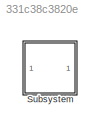
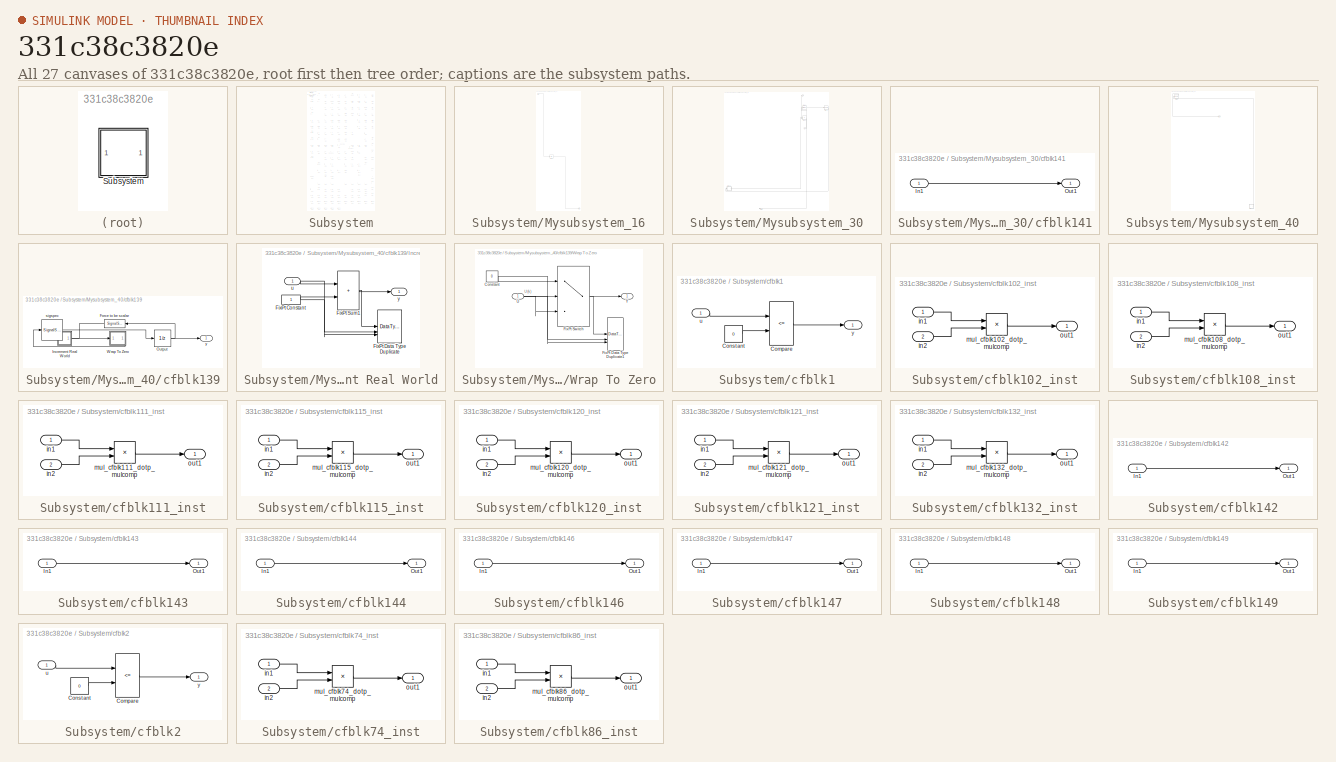
[diagram: thumbnail index - all 27 canvases of the model, root first then tree order]
MODEL slx_331c38c3820e
KIND model
CONFIG AbsTol = auto
CONFIG EnableMultiTasking = off
CONFIG FixedStep = auto
CONFIG MaxStep = auto
CONFIG MinStep = auto
CONFIG RelTol = 1e-3
CONFIG SampleTimeConstraint = Unconstrained
CONFIG SolverName = VariableStepAuto
CONFIG StartTime = 0.0
CONFIG StopTime = 10.0
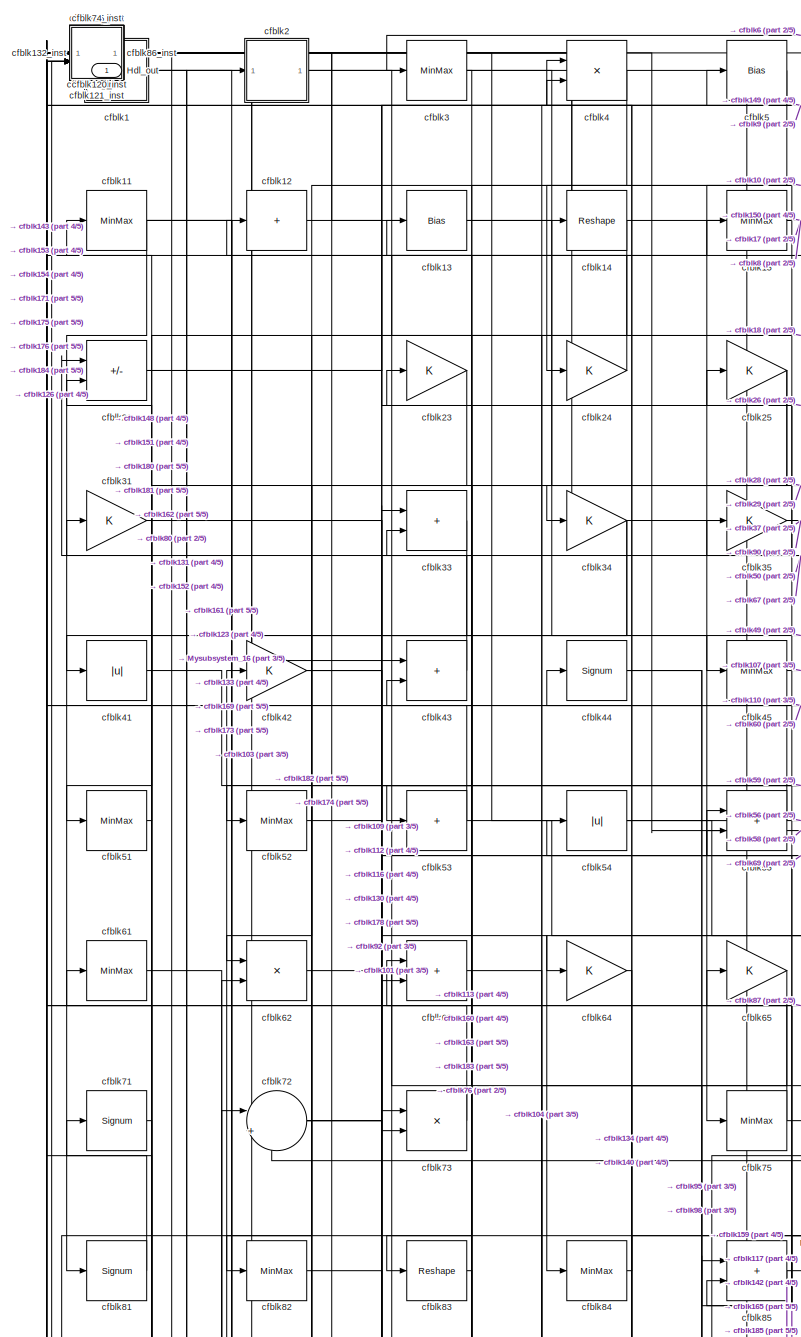
[diagram: Subsystem - part 1/5, top left region]
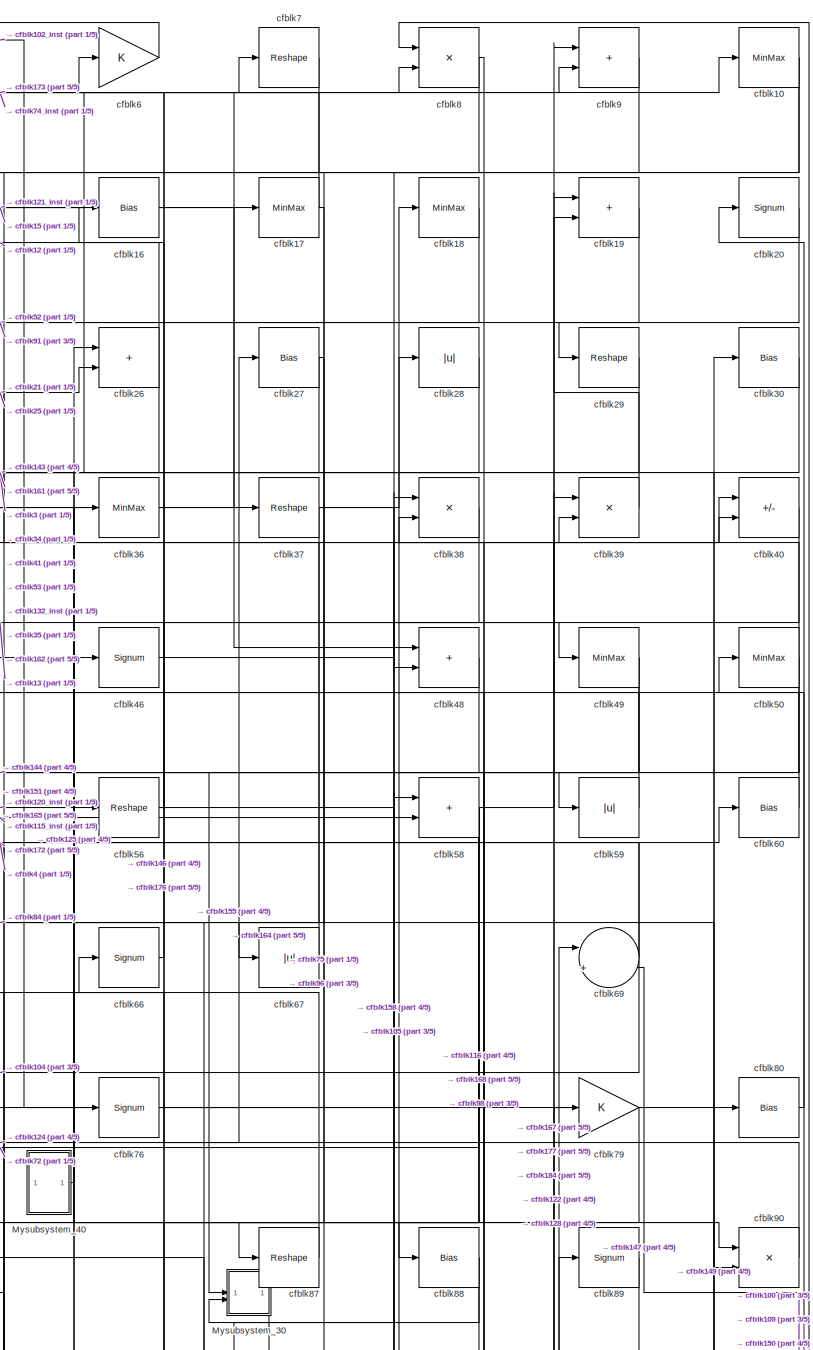
[diagram: Subsystem - part 2/5, top right region]
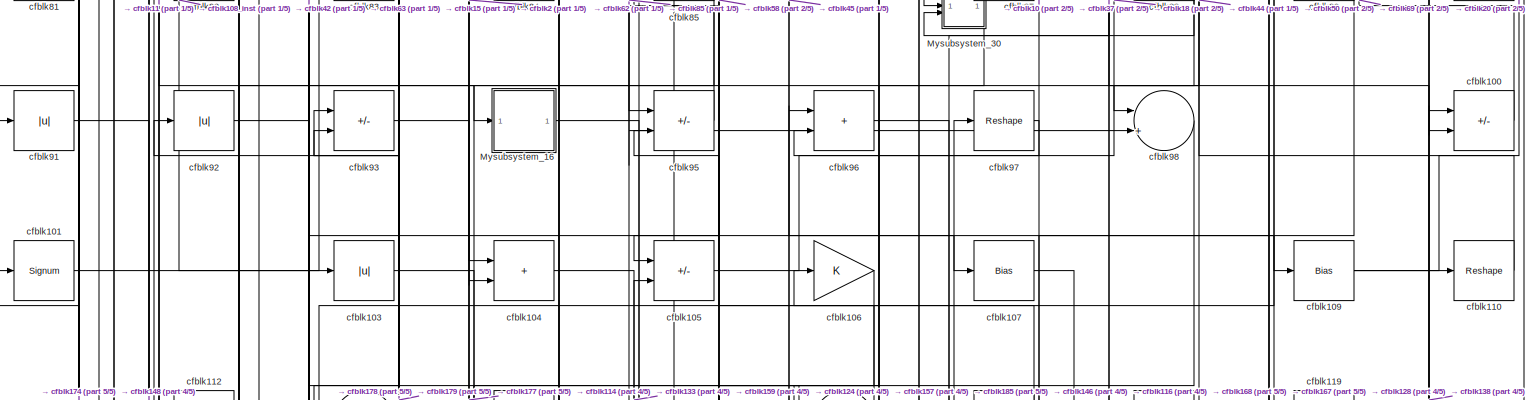
[diagram: Subsystem - part 3/5, full width, middle band]
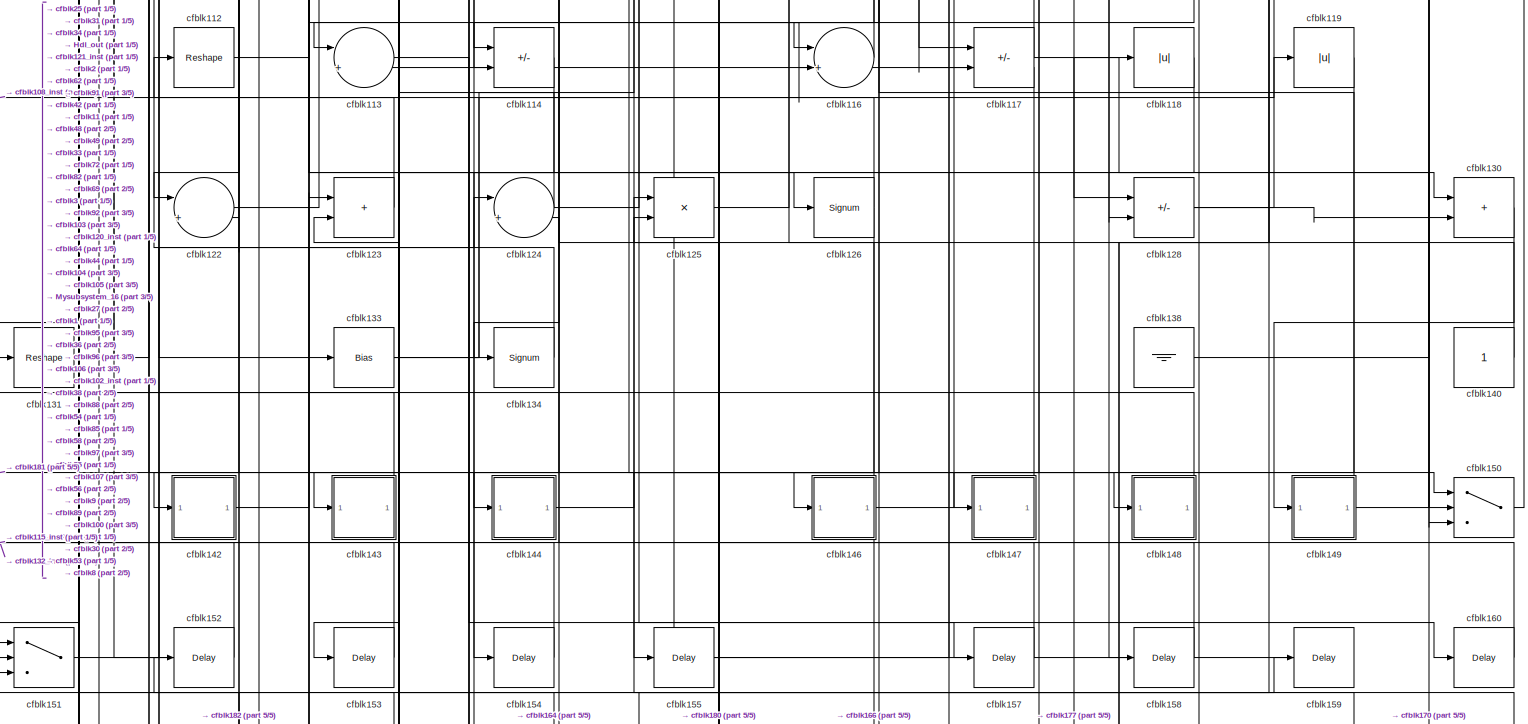
[diagram: Subsystem - part 4/5, full width, bottom band]
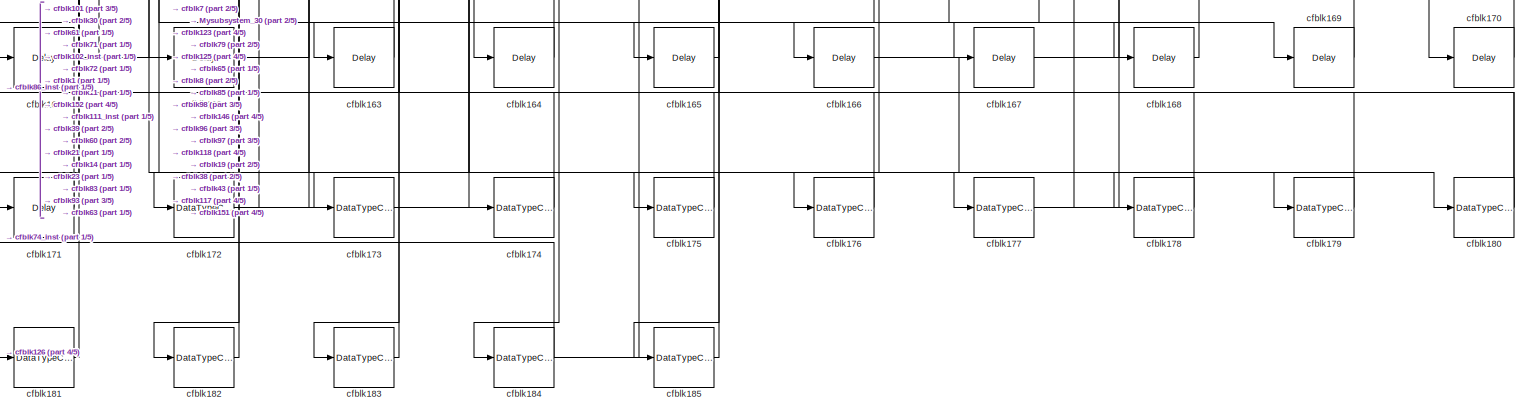
[diagram: Subsystem - part 5/5, full width, bottom band]
BLOCK [SubSystem] Subsystem
BLOCK [Outport] Subsystem/Hdl_out
  OutDataTypeStr = uint8
  SampleTime = 1
BLOCK [SubSystem] Subsystem/Mysubsystem_16
BLOCK [Inport] Subsystem/Mysubsystem_16/In1
  OutDataTypeStr = uint8
  PortDimensions = 1
  SampleTime = 1
BLOCK [Outport] Subsystem/Mysubsystem_16/Out1
  SampleTime = 1
BLOCK [Bias] Subsystem/Mysubsystem_16/cfblk94
  Bias = 0.0
  SaturateOnIntegerOverflow = off
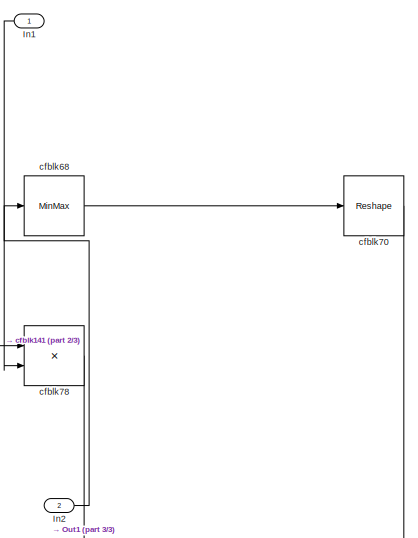
[diagram: Subsystem/Mysubsystem_30 - part 1/3, top right region]
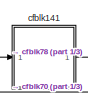
[diagram: Subsystem/Mysubsystem_30 - part 2/3, bottom left region]
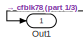
[diagram: Subsystem/Mysubsystem_30 - part 3/3, bottom center region]
BLOCK [SubSystem] Subsystem/Mysubsystem_30
BLOCK [Inport] Subsystem/Mysubsystem_30/In1
  OutDataTypeStr = uint8
  PortDimensions = 1
  SampleTime = 1
BLOCK [Inport] Subsystem/Mysubsystem_30/In2
  OutDataTypeStr = uint8
  Port = 2
  PortDimensions = 1
  SampleTime = 1
BLOCK [Outport] Subsystem/Mysubsystem_30/Out1
  SampleTime = 1
BLOCK [SubSystem] Subsystem/Mysubsystem_30/cfblk141
BLOCK [Inport] Subsystem/Mysubsystem_30/cfblk141/In1
  OutDataTypeStr = uint8
  PortDimensions = 1
  SampleTime = 1
BLOCK [Outport] Subsystem/Mysubsystem_30/cfblk141/Out1
  SampleTime = 1
BLOCK [MinMax] Subsystem/Mysubsystem_30/cfblk68
BLOCK [Reshape] Subsystem/Mysubsystem_30/cfblk70
BLOCK [Product] Subsystem/Mysubsystem_30/cfblk78
  Inputs = */
  RndMeth = Zero
  SaturateOnIntegerOverflow = on
BLOCK [SubSystem] Subsystem/Mysubsystem_40
BLOCK [Outport] Subsystem/Mysubsystem_40/Out1
  SampleTime = 1
BLOCK [SubSystem] Subsystem/Mysubsystem_40/cfblk139
BLOCK [SignalSpecification] Subsystem/Mysubsystem_40/cfblk139/Force to be scalar
  Dimensions = 1
  DisableCoverage = on
BLOCK [SubSystem] Subsystem/Mysubsystem_40/cfblk139/Increment Real World
BLOCK [Constant] Subsystem/Mysubsystem_40/cfblk139/Increment Real World/FixPt Constant
  DisableCoverage = on
  OutDataTypeStr = Inherit: Inherit via back propagation
  SampleTime = -1
BLOCK [DataTypeDuplicate] Subsystem/Mysubsystem_40/cfblk139/Increment Real World/FixPt Data Type Duplicate
  DisableCoverage = on
  NumInputPorts = 3
BLOCK [Sum] Subsystem/Mysubsystem_40/cfblk139/Increment Real World/FixPt Sum1
  IconShape = rectangular
  InputSameDT = on
  LockScale = on
  OutDataTypeStr = Inherit: Inherit via back propagation
BLOCK [Inport] Subsystem/Mysubsystem_40/cfblk139/Increment Real World/u
  OutDataTypeStr = uint8
  SampleTime = 1
BLOCK [Outport] Subsystem/Mysubsystem_40/cfblk139/Increment Real World/y
  SampleTime = 1
BLOCK [UnitDelay] Subsystem/Mysubsystem_40/cfblk139/Output
  HasFrameUpgradeWarning = on
  InitialCondition = 0.0
  SampleTime = tsamp
BLOCK [SubSystem] Subsystem/Mysubsystem_40/cfblk139/Wrap To Zero
BLOCK [Constant] Subsystem/Mysubsystem_40/cfblk139/Wrap To Zero/Constant
  DisableCoverage = on
  OutDataTypeStr = Inherit: Inherit via back propagation
  SampleTime = -1
  Value = 0
BLOCK [DataTypeDuplicate] Subsystem/Mysubsystem_40/cfblk139/Wrap To Zero/FixPt Data Type Duplicate1
  DisableCoverage = on
  NumInputPorts = 3
BLOCK [Switch] Subsystem/Mysubsystem_40/cfblk139/Wrap To Zero/FixPt Switch
  Criteria = u2 > Threshold
  InputSameDT = off
  OutDataTypeStr = Inherit: Inherit via back propagation
  SaturateOnIntegerOverflow = off
  Threshold = Threshold
  ZeroCross = off
BLOCK [Inport] Subsystem/Mysubsystem_40/cfblk139/Wrap To Zero/U
  OutDataTypeStr = uint8
  SampleTime = 1
BLOCK [Outport] Subsystem/Mysubsystem_40/cfblk139/Wrap To Zero/Y
  SampleTime = 1
BLOCK [SignalSpecification] Subsystem/Mysubsystem_40/cfblk139/sigspec
  Dimensions = 1
  OutDataTypeStr = uint8
BLOCK [Outport] Subsystem/Mysubsystem_40/cfblk139/y
  SampleTime = 1
BLOCK [Signum] Subsystem/Mysubsystem_40/cfblk22
BLOCK [SubSystem] Subsystem/cfblk1
BLOCK [RelationalOperator] Subsystem/cfblk1/Compare
  Operator = <=
  OutDataTypeStr = fixdt(0, 8)
BLOCK [Constant] Subsystem/cfblk1/Constant
  DisableCoverage = on
  OutDataTypeStr = Inherit: Inherit via back propagation
  PreserveConstantTs = on
  SampleTime = -1
  Value = 0
BLOCK [Inport] Subsystem/cfblk1/u
  OutDataTypeStr = uint8
  SampleTime = 1
BLOCK [Outport] Subsystem/cfblk1/y
  SampleTime = 1
BLOCK [MinMax] Subsystem/cfblk10
  OutDataTypeStr = uint8
BLOCK [Sum] Subsystem/cfblk100
  IconShape = rectangular
  Inputs = +-
  OutDataTypeStr = uint8
BLOCK [Signum] Subsystem/cfblk101
BLOCK [SubSystem] Subsystem/cfblk102_inst
BLOCK [Inport] Subsystem/cfblk102_inst/in1
  OutDataTypeStr = uint8
  SampleTime = 1
BLOCK [Inport] Subsystem/cfblk102_inst/in2
  OutDataTypeStr = uint8
  Port = 2
  SampleTime = 1
BLOCK [Product] Subsystem/cfblk102_inst/mul_cfblk102_dotp_mulcomp
  Inputs = **
  OutDataTypeStr = uint8
  SampleTime = 1
BLOCK [Outport] Subsystem/cfblk102_inst/out1
  OutDataTypeStr = uint8
  SampleTime = 1
BLOCK [Abs] Subsystem/cfblk103
  OutDataTypeStr = uint8
  SaturateOnIntegerOverflow = off
BLOCK [Sum] Subsystem/cfblk104
  IconShape = rectangular
  OutDataTypeStr = uint8
BLOCK [Sum] Subsystem/cfblk105
  IconShape = rectangular
  Inputs = +-
  OutDataTypeStr = uint8
BLOCK [Gain] Subsystem/cfblk106
  OutDataTypeStr = uint8
BLOCK [Bias] Subsystem/cfblk107
  Bias = 0.0
  SaturateOnIntegerOverflow = off
BLOCK [SubSystem] Subsystem/cfblk108_inst
BLOCK [Inport] Subsystem/cfblk108_inst/in1
  OutDataTypeStr = uint8
  SampleTime = 1
BLOCK [Inport] Subsystem/cfblk108_inst/in2
  OutDataTypeStr = uint8
  Port = 2
  SampleTime = 1
BLOCK [Product] Subsystem/cfblk108_inst/mul_cfblk108_dotp_mulcomp
  Inputs = **
  OutDataTypeStr = uint8
  SampleTime = 1
BLOCK [Outport] Subsystem/cfblk108_inst/out1
  OutDataTypeStr = uint8
  SampleTime = 1
BLOCK [Bias] Subsystem/cfblk109
  Bias = 0.0
  SaturateOnIntegerOverflow = off
BLOCK [MinMax] Subsystem/cfblk11
  OutDataTypeStr = uint8
BLOCK [Reshape] Subsystem/cfblk110
BLOCK [SubSystem] Subsystem/cfblk111_inst
BLOCK [Inport] Subsystem/cfblk111_inst/in1
  OutDataTypeStr = uint8
  SampleTime = 1
BLOCK [Inport] Subsystem/cfblk111_inst/in2
  OutDataTypeStr = uint8
  Port = 2
  SampleTime = 1
BLOCK [Product] Subsystem/cfblk111_inst/mul_cfblk111_dotp_mulcomp
  Inputs = **
  OutDataTypeStr = uint8
  SampleTime = 1
BLOCK [Outport] Subsystem/cfblk111_inst/out1
  OutDataTypeStr = uint8
  SampleTime = 1
BLOCK [Reshape] Subsystem/cfblk112
BLOCK [Sum] Subsystem/cfblk113
  Inputs = |++
  OutDataTypeStr = uint8
BLOCK [Sum] Subsystem/cfblk114
  IconShape = rectangular
  Inputs = +-
  OutDataTypeStr = uint8
BLOCK [SubSystem] Subsystem/cfblk115_inst
BLOCK [Inport] Subsystem/cfblk115_inst/in1
  OutDataTypeStr = uint8
  SampleTime = 1
BLOCK [Inport] Subsystem/cfblk115_inst/in2
  OutDataTypeStr = uint8
  Port = 2
  SampleTime = 1
BLOCK [Product] Subsystem/cfblk115_inst/mul_cfblk115_dotp_mulcomp
  Inputs = **
  OutDataTypeStr = uint8
  SampleTime = 1
BLOCK [Outport] Subsystem/cfblk115_inst/out1
  OutDataTypeStr = uint8
  SampleTime = 1
BLOCK [Sum] Subsystem/cfblk116
  Inputs = |++
  OutDataTypeStr = uint8
BLOCK [Sum] Subsystem/cfblk117
  IconShape = rectangular
  Inputs = +-
  OutDataTypeStr = uint8
BLOCK [Abs] Subsystem/cfblk118
  OutDataTypeStr = uint8
  SaturateOnIntegerOverflow = off
BLOCK [Abs] Subsystem/cfblk119
  OutDataTypeStr = uint8
  SaturateOnIntegerOverflow = off
BLOCK [Sum] Subsystem/cfblk12
  IconShape = rectangular
  Inputs = +
  OutDataTypeStr = uint8
BLOCK [SubSystem] Subsystem/cfblk120_inst
BLOCK [Inport] Subsystem/cfblk120_inst/in1
  OutDataTypeStr = uint8
  SampleTime = 1
BLOCK [Inport] Subsystem/cfblk120_inst/in2
  OutDataTypeStr = uint8
  Port = 2
  SampleTime = 1
BLOCK [Product] Subsystem/cfblk120_inst/mul_cfblk120_dotp_mulcomp
  Inputs = **
  OutDataTypeStr = uint8
  SampleTime = 1
BLOCK [Outport] Subsystem/cfblk120_inst/out1
  OutDataTypeStr = uint8
  SampleTime = 1
BLOCK [SubSystem] Subsystem/cfblk121_inst
BLOCK [Inport] Subsystem/cfblk121_inst/in1
  OutDataTypeStr = uint8
  SampleTime = 1
BLOCK [Inport] Subsystem/cfblk121_inst/in2
  OutDataTypeStr = uint8
  Port = 2
  SampleTime = 1
BLOCK [Product] Subsystem/cfblk121_inst/mul_cfblk121_dotp_mulcomp
  Inputs = **
  OutDataTypeStr = uint8
  SampleTime = 1
BLOCK [Outport] Subsystem/cfblk121_inst/out1
  OutDataTypeStr = uint8
  SampleTime = 1
BLOCK [Sum] Subsystem/cfblk122
  Inputs = |++
  OutDataTypeStr = uint8
BLOCK [Sum] Subsystem/cfblk123
  IconShape = rectangular
  OutDataTypeStr = uint8
BLOCK [Sum] Subsystem/cfblk124
  Inputs = |++
  OutDataTypeStr = uint8
BLOCK [Product] Subsystem/cfblk125
  Inputs = */
  OutDataTypeStr = uint8
  RndMeth = Zero
  SaturateOnIntegerOverflow = on
BLOCK [Signum] Subsystem/cfblk126
BLOCK [Sum] Subsystem/cfblk128
  IconShape = rectangular
  Inputs = +-
  OutDataTypeStr = uint8
BLOCK [Bias] Subsystem/cfblk13
  Bias = 0.0
  SaturateOnIntegerOverflow = off
BLOCK [Sum] Subsystem/cfblk130
  IconShape = rectangular
  OutDataTypeStr = uint8
BLOCK [Reshape] Subsystem/cfblk131
BLOCK [SubSystem] Subsystem/cfblk132_inst
BLOCK [Inport] Subsystem/cfblk132_inst/in1
  OutDataTypeStr = uint8
  SampleTime = 1
BLOCK [Inport] Subsystem/cfblk132_inst/in2
  OutDataTypeStr = uint8
  Port = 2
  SampleTime = 1
BLOCK [Product] Subsystem/cfblk132_inst/mul_cfblk132_dotp_mulcomp
  Inputs = **
  OutDataTypeStr = uint8
  SampleTime = 1
BLOCK [Outport] Subsystem/cfblk132_inst/out1
  OutDataTypeStr = uint8
  SampleTime = 1
BLOCK [Bias] Subsystem/cfblk133
  Bias = 0.0
  SaturateOnIntegerOverflow = off
BLOCK [Signum] Subsystem/cfblk134
BLOCK [Ground] Subsystem/cfblk138
BLOCK [Reshape] Subsystem/cfblk14
BLOCK [Constant] Subsystem/cfblk140
  OutDataTypeStr = uint8
  SampleTime = -1
BLOCK [SubSystem] Subsystem/cfblk142
BLOCK [Inport] Subsystem/cfblk142/In1
  OutDataTypeStr = uint8
  PortDimensions = 1
  SampleTime = 1
BLOCK [Outport] Subsystem/cfblk142/Out1
  SampleTime = 1
BLOCK [SubSystem] Subsystem/cfblk143
BLOCK [Inport] Subsystem/cfblk143/In1
  OutDataTypeStr = uint8
  PortDimensions = 1
  SampleTime = 1
BLOCK [Outport] Subsystem/cfblk143/Out1
  SampleTime = 1
BLOCK [SubSystem] Subsystem/cfblk144
BLOCK [Inport] Subsystem/cfblk144/In1
  OutDataTypeStr = uint8
  PortDimensions = 1
  SampleTime = 1
BLOCK [Outport] Subsystem/cfblk144/Out1
  SampleTime = 1
BLOCK [SubSystem] Subsystem/cfblk146
BLOCK [Inport] Subsystem/cfblk146/In1
  OutDataTypeStr = uint8
  PortDimensions = 1
  SampleTime = 1
BLOCK [Outport] Subsystem/cfblk146/Out1
  SampleTime = 1
BLOCK [SubSystem] Subsystem/cfblk147
BLOCK [Inport] Subsystem/cfblk147/In1
  OutDataTypeStr = uint8
  PortDimensions = 1
  SampleTime = 1
BLOCK [Outport] Subsystem/cfblk147/Out1
  SampleTime = 1
BLOCK [SubSystem] Subsystem/cfblk148
BLOCK [Inport] Subsystem/cfblk148/In1
  OutDataTypeStr = uint8
  PortDimensions = 1
  SampleTime = 1
BLOCK [Outport] Subsystem/cfblk148/Out1
  SampleTime = 1
BLOCK [SubSystem] Subsystem/cfblk149
BLOCK [Inport] Subsystem/cfblk149/In1
  OutDataTypeStr = uint8
  PortDimensions = 1
  SampleTime = 1
BLOCK [Outport] Subsystem/cfblk149/Out1
  SampleTime = 1
BLOCK [MinMax] Subsystem/cfblk15
  OutDataTypeStr = uint8
BLOCK [Switch] Subsystem/cfblk150
  InputSameDT = off
  OutDataTypeStr = uint8
  SaturateOnIntegerOverflow = off
BLOCK [Switch] Subsystem/cfblk151
  InputSameDT = off
  OutDataTypeStr = uint8
  SaturateOnIntegerOverflow = off
BLOCK [Delay] Subsystem/cfblk152
  InputPortMap = u0
  SampleTime = 1
BLOCK [Delay] Subsystem/cfblk153
  InputPortMap = u0
  SampleTime = 1
BLOCK [Delay] Subsystem/cfblk154
  InputPortMap = u0
  SampleTime = 1
BLOCK [Delay] Subsystem/cfblk155
  InputPortMap = u0
  SampleTime = 1
BLOCK [Delay] Subsystem/cfblk157
  InputPortMap = u0
  SampleTime = 1
BLOCK [Delay] Subsystem/cfblk158
  InputPortMap = u0
  SampleTime = 1
BLOCK [Delay] Subsystem/cfblk159
  InputPortMap = u0
  SampleTime = 1
BLOCK [Bias] Subsystem/cfblk16
  Bias = 0.0
  SaturateOnIntegerOverflow = off
BLOCK [Delay] Subsystem/cfblk160
  InputPortMap = u0
  SampleTime = 1
BLOCK [Delay] Subsystem/cfblk161
  InputPortMap = u0
  SampleTime = 1
BLOCK [Delay] Subsystem/cfblk162
  InputPortMap = u0
  SampleTime = 1
BLOCK [Delay] Subsystem/cfblk163
  InputPortMap = u0
  SampleTime = 1
BLOCK [Delay] Subsystem/cfblk164
  InputPortMap = u0
  SampleTime = 1
BLOCK [Delay] Subsystem/cfblk165
  InputPortMap = u0
  SampleTime = 1
BLOCK [Delay] Subsystem/cfblk166
  InputPortMap = u0
  SampleTime = 1
BLOCK [Delay] Subsystem/cfblk167
  InputPortMap = u0
  SampleTime = 1
BLOCK [Delay] Subsystem/cfblk168
  InputPortMap = u0
  SampleTime = 1
BLOCK [Delay] Subsystem/cfblk169
  InputPortMap = u0
  SampleTime = 1
BLOCK [MinMax] Subsystem/cfblk17
  OutDataTypeStr = uint8
BLOCK [Delay] Subsystem/cfblk170
  InputPortMap = u0
  SampleTime = 1
BLOCK [Delay] Subsystem/cfblk171
  InputPortMap = u0
  SampleTime = 1
BLOCK [DataTypeConversion] Subsystem/cfblk172
  OutDataTypeStr = uint8
  RndMeth = Floor
  SaturateOnIntegerOverflow = off
BLOCK [DataTypeConversion] Subsystem/cfblk173
  OutDataTypeStr = uint8
  RndMeth = Floor
  SaturateOnIntegerOverflow = off
BLOCK [DataTypeConversion] Subsystem/cfblk174
  OutDataTypeStr = uint8
  RndMeth = Floor
  SaturateOnIntegerOverflow = off
BLOCK [DataTypeConversion] Subsystem/cfblk175
  OutDataTypeStr = uint8
  RndMeth = Floor
  SaturateOnIntegerOverflow = off
BLOCK [DataTypeConversion] Subsystem/cfblk176
  OutDataTypeStr = uint8
  RndMeth = Floor
  SaturateOnIntegerOverflow = off
BLOCK [DataTypeConversion] Subsystem/cfblk177
  OutDataTypeStr = uint8
  RndMeth = Floor
  SaturateOnIntegerOverflow = off
BLOCK [DataTypeConversion] Subsystem/cfblk178
  OutDataTypeStr = uint8
  RndMeth = Floor
  SaturateOnIntegerOverflow = off
BLOCK [DataTypeConversion] Subsystem/cfblk179
  OutDataTypeStr = uint8
  RndMeth = Floor
  SaturateOnIntegerOverflow = off
BLOCK [MinMax] Subsystem/cfblk18
  OutDataTypeStr = uint8
BLOCK [DataTypeConversion] Subsystem/cfblk180
  OutDataTypeStr = uint8
  RndMeth = Floor
  SaturateOnIntegerOverflow = off
BLOCK [DataTypeConversion] Subsystem/cfblk181
  OutDataTypeStr = uint8
  RndMeth = Floor
  SaturateOnIntegerOverflow = off
BLOCK [DataTypeConversion] Subsystem/cfblk182
  OutDataTypeStr = uint8
  RndMeth = Floor
  SaturateOnIntegerOverflow = off
BLOCK [DataTypeConversion] Subsystem/cfblk183
  OutDataTypeStr = uint8
  RndMeth = Floor
  SaturateOnIntegerOverflow = off
BLOCK [DataTypeConversion] Subsystem/cfblk184
  OutDataTypeStr = uint8
  RndMeth = Floor
  SaturateOnIntegerOverflow = off
BLOCK [DataTypeConversion] Subsystem/cfblk185
  OutDataTypeStr = uint8
  RndMeth = Floor
  SaturateOnIntegerOverflow = off
BLOCK [Sum] Subsystem/cfblk19
  IconShape = rectangular
  OutDataTypeStr = uint8
BLOCK [SubSystem] Subsystem/cfblk2
BLOCK [RelationalOperator] Subsystem/cfblk2/Compare
  Operator = <=
  OutDataTypeStr = fixdt(0, 8)
BLOCK [Constant] Subsystem/cfblk2/Constant
  DisableCoverage = on
  OutDataTypeStr = Inherit: Inherit via back propagation
  PreserveConstantTs = on
  SampleTime = -1
  Value = 0
BLOCK [Inport] Subsystem/cfblk2/u
  OutDataTypeStr = uint8
  SampleTime = 1
BLOCK [Outport] Subsystem/cfblk2/y
  SampleTime = 1
BLOCK [Signum] Subsystem/cfblk20
BLOCK [Sum] Subsystem/cfblk21
  IconShape = rectangular
  Inputs = +-
  OutDataTypeStr = uint8
BLOCK [Gain] Subsystem/cfblk23
  OutDataTypeStr = uint8
BLOCK [Gain] Subsystem/cfblk24
  OutDataTypeStr = uint8
BLOCK [Gain] Subsystem/cfblk25
  OutDataTypeStr = uint8
BLOCK [Sum] Subsystem/cfblk26
  IconShape = rectangular
  OutDataTypeStr = uint8
BLOCK [Bias] Subsystem/cfblk27
  Bias = 0.0
  SaturateOnIntegerOverflow = off
BLOCK [Abs] Subsystem/cfblk28
  OutDataTypeStr = uint8
  SaturateOnIntegerOverflow = off
BLOCK [Reshape] Subsystem/cfblk29
BLOCK [MinMax] Subsystem/cfblk3
  OutDataTypeStr = uint8
BLOCK [Bias] Subsystem/cfblk30
  Bias = 0.0
  SaturateOnIntegerOverflow = off
BLOCK [Gain] Subsystem/cfblk31
  OutDataTypeStr = uint8
BLOCK [Sum] Subsystem/cfblk33
  IconShape = rectangular
  OutDataTypeStr = uint8
BLOCK [Gain] Subsystem/cfblk34
  OutDataTypeStr = uint8
BLOCK [Gain] Subsystem/cfblk35
  OutDataTypeStr = uint8
BLOCK [MinMax] Subsystem/cfblk36
  OutDataTypeStr = uint8
BLOCK [Reshape] Subsystem/cfblk37
BLOCK [Product] Subsystem/cfblk38
  Inputs = */
  OutDataTypeStr = uint8
  RndMeth = Zero
  SaturateOnIntegerOverflow = on
BLOCK [Product] Subsystem/cfblk39
  Inputs = */
  OutDataTypeStr = uint8
  RndMeth = Zero
  SaturateOnIntegerOverflow = on
BLOCK [Product] Subsystem/cfblk4
  Inputs = */
  OutDataTypeStr = uint8
  RndMeth = Zero
  SaturateOnIntegerOverflow = on
BLOCK [Sum] Subsystem/cfblk40
  IconShape = rectangular
  Inputs = +-
  OutDataTypeStr = uint8
BLOCK [Abs] Subsystem/cfblk41
  OutDataTypeStr = uint8
  SaturateOnIntegerOverflow = off
BLOCK [Gain] Subsystem/cfblk42
  OutDataTypeStr = uint8
BLOCK [Sum] Subsystem/cfblk43
  IconShape = rectangular
  OutDataTypeStr = uint8
BLOCK [Signum] Subsystem/cfblk44
BLOCK [MinMax] Subsystem/cfblk45
  OutDataTypeStr = uint8
BLOCK [Signum] Subsystem/cfblk46
BLOCK [Sum] Subsystem/cfblk48
  IconShape = rectangular
  OutDataTypeStr = uint8
BLOCK [MinMax] Subsystem/cfblk49
  OutDataTypeStr = uint8
BLOCK [Bias] Subsystem/cfblk5
  Bias = 0.0
  SaturateOnIntegerOverflow = off
BLOCK [MinMax] Subsystem/cfblk50
  OutDataTypeStr = uint8
BLOCK [MinMax] Subsystem/cfblk51
  OutDataTypeStr = uint8
BLOCK [MinMax] Subsystem/cfblk52
  OutDataTypeStr = uint8
BLOCK [Sum] Subsystem/cfblk53
  IconShape = rectangular
  Inputs = +
  OutDataTypeStr = uint8
BLOCK [Abs] Subsystem/cfblk54
  OutDataTypeStr = uint8
  SaturateOnIntegerOverflow = off
BLOCK [Sum] Subsystem/cfblk55
  IconShape = rectangular
  OutDataTypeStr = uint8
BLOCK [Reshape] Subsystem/cfblk56
BLOCK [Sum] Subsystem/cfblk58
  IconShape = rectangular
  OutDataTypeStr = uint8
BLOCK [Abs] Subsystem/cfblk59
  OutDataTypeStr = uint8
  SaturateOnIntegerOverflow = off
BLOCK [Gain] Subsystem/cfblk6
  OutDataTypeStr = uint8
BLOCK [Bias] Subsystem/cfblk60
  Bias = 0.0
  SaturateOnIntegerOverflow = off
BLOCK [MinMax] Subsystem/cfblk61
  OutDataTypeStr = uint8
BLOCK [Product] Subsystem/cfblk62
  Inputs = */
  OutDataTypeStr = uint8
  RndMeth = Zero
  SaturateOnIntegerOverflow = on
BLOCK [Sum] Subsystem/cfblk63
  IconShape = rectangular
  OutDataTypeStr = uint8
BLOCK [Gain] Subsystem/cfblk64
  OutDataTypeStr = uint8
BLOCK [Gain] Subsystem/cfblk65
  OutDataTypeStr = uint8
BLOCK [Signum] Subsystem/cfblk66
BLOCK [Abs] Subsystem/cfblk67
  OutDataTypeStr = uint8
  SaturateOnIntegerOverflow = off
BLOCK [Sum] Subsystem/cfblk69
  Inputs = |++
  OutDataTypeStr = uint8
BLOCK [Reshape] Subsystem/cfblk7
BLOCK [Signum] Subsystem/cfblk71
BLOCK [Sum] Subsystem/cfblk72
  Inputs = |++
  OutDataTypeStr = uint8
BLOCK [Product] Subsystem/cfblk73
  Inputs = */
  OutDataTypeStr = uint8
  RndMeth = Zero
  SaturateOnIntegerOverflow = on
BLOCK [SubSystem] Subsystem/cfblk74_inst
BLOCK [Inport] Subsystem/cfblk74_inst/in1
  OutDataTypeStr = uint8
  SampleTime = 1
BLOCK [Inport] Subsystem/cfblk74_inst/in2
  OutDataTypeStr = uint8
  Port = 2
  SampleTime = 1
BLOCK [Product] Subsystem/cfblk74_inst/mul_cfblk74_dotp_mulcomp
  Inputs = **
  OutDataTypeStr = uint8
  SampleTime = 1
BLOCK [Outport] Subsystem/cfblk74_inst/out1
  OutDataTypeStr = uint8
  SampleTime = 1
BLOCK [MinMax] Subsystem/cfblk75
  OutDataTypeStr = uint8
BLOCK [Signum] Subsystem/cfblk76
BLOCK [Gain] Subsystem/cfblk79
  OutDataTypeStr = uint8
BLOCK [Product] Subsystem/cfblk8
  Inputs = */
  OutDataTypeStr = uint8
  RndMeth = Zero
  SaturateOnIntegerOverflow = on
BLOCK [Bias] Subsystem/cfblk80
  Bias = 0.0
  SaturateOnIntegerOverflow = off
BLOCK [Signum] Subsystem/cfblk81
BLOCK [MinMax] Subsystem/cfblk82
  OutDataTypeStr = uint8
BLOCK [Reshape] Subsystem/cfblk83
BLOCK [MinMax] Subsystem/cfblk84
  OutDataTypeStr = uint8
BLOCK [Sum] Subsystem/cfblk85
  IconShape = rectangular
  OutDataTypeStr = uint8
BLOCK [SubSystem] Subsystem/cfblk86_inst
BLOCK [Inport] Subsystem/cfblk86_inst/in1
  OutDataTypeStr = uint8
  SampleTime = 1
BLOCK [Inport] Subsystem/cfblk86_inst/in2
  OutDataTypeStr = uint8
  Port = 2
  SampleTime = 1
BLOCK [Product] Subsystem/cfblk86_inst/mul_cfblk86_dotp_mulcomp
  Inputs = **
  OutDataTypeStr = uint8
  SampleTime = 1
BLOCK [Outport] Subsystem/cfblk86_inst/out1
  OutDataTypeStr = uint8
  SampleTime = 1
BLOCK [Reshape] Subsystem/cfblk87
BLOCK [Bias] Subsystem/cfblk88
  Bias = 0.0
  SaturateOnIntegerOverflow = off
BLOCK [Signum] Subsystem/cfblk89
BLOCK [Sum] Subsystem/cfblk9
  IconShape = rectangular
  OutDataTypeStr = uint8
BLOCK [Product] Subsystem/cfblk90
  Inputs = */
  OutDataTypeStr = uint8
  RndMeth = Zero
  SaturateOnIntegerOverflow = on
BLOCK [Abs] Subsystem/cfblk91
  OutDataTypeStr = uint8
  SaturateOnIntegerOverflow = off
BLOCK [Abs] Subsystem/cfblk92
  OutDataTypeStr = uint8
  SaturateOnIntegerOverflow = off
BLOCK [Sum] Subsystem/cfblk93
  IconShape = rectangular
  Inputs = +-
  OutDataTypeStr = uint8
BLOCK [Sum] Subsystem/cfblk95
  IconShape = rectangular
  Inputs = +-
  OutDataTypeStr = uint8
BLOCK [Sum] Subsystem/cfblk96
  IconShape = rectangular
  OutDataTypeStr = uint8
BLOCK [Reshape] Subsystem/cfblk97
BLOCK [Sum] Subsystem/cfblk98
  Inputs = |++
  OutDataTypeStr = uint8
ANNOTATION Subsystem/Mysubsystem_40/cfblk139/Wrap To Zero: U(k)
LINE Subsystem/Mysubsystem_16/In1:1 -> Subsystem/Mysubsystem_16/cfblk94:1
LINE Subsystem/Mysubsystem_16/cfblk94:1 -> Subsystem/Mysubsystem_16/Out1:1
LINE Subsystem/Mysubsystem_16:1 -> Subsystem/cfblk157:1
LINE Subsystem/Mysubsystem_30/In1:1 -> Subsystem/Mysubsystem_30/cfblk78:2
LINE Subsystem/Mysubsystem_30/In2:1 -> Subsystem/Mysubsystem_30/cfblk68:1
LINE Subsystem/Mysubsystem_30/cfblk141/In1:1 -> Subsystem/Mysubsystem_30/cfblk141/Out1:1
LINE Subsystem/Mysubsystem_30/cfblk141:1 -> Subsystem/Mysubsystem_30/cfblk78:1
LINE Subsystem/Mysubsystem_30/cfblk68:1 -> Subsystem/Mysubsystem_30/cfblk70:1
LINE Subsystem/Mysubsystem_30/cfblk70:1 -> Subsystem/Mysubsystem_30/cfblk141:1
LINE Subsystem/Mysubsystem_30/cfblk78:1 -> Subsystem/Mysubsystem_30/Out1:1
LINE Subsystem/Mysubsystem_30:1 -> Subsystem/cfblk164:1
LINE Subsystem/Mysubsystem_40/cfblk139:1 -> Subsystem/Mysubsystem_40/cfblk22:1
LINE Subsystem/Mysubsystem_40/cfblk22:1 -> Subsystem/Mysubsystem_40/Out1:1
LINE Subsystem/Mysubsystem_40:1 -> Subsystem/cfblk46:1
LINE Subsystem/cfblk100:1 -> Subsystem/cfblk69:2
LINE Subsystem/cfblk101:1 -> Subsystem/cfblk15:1
LINE Subsystem/cfblk102_inst/in1:1 -> Subsystem/cfblk102_inst/mul_cfblk102_dotp_mulcomp:1
LINE Subsystem/cfblk102_inst/in2:1 -> Subsystem/cfblk102_inst/mul_cfblk102_dotp_mulcomp:2
LINE Subsystem/cfblk102_inst/mul_cfblk102_dotp_mulcomp:1 -> Subsystem/cfblk102_inst/out1:1
NET Subsystem/cfblk102_inst:1 -> Subsystem/cfblk162:1, Subsystem/cfblk80:1
LINE Subsystem/cfblk103:1 -> Subsystem/cfblk114:2
LINE Subsystem/cfblk104:1 -> Subsystem/cfblk159:1
LINE Subsystem/cfblk105:1 -> Subsystem/cfblk18:1
LINE Subsystem/cfblk106:1 -> Subsystem/cfblk114:1
LINE Subsystem/cfblk107:1 -> Subsystem/cfblk128:1
LINE Subsystem/cfblk108_inst/in1:1 -> Subsystem/cfblk108_inst/mul_cfblk108_dotp_mulcomp:1
LINE Subsystem/cfblk108_inst/in2:1 -> Subsystem/cfblk108_inst/mul_cfblk108_dotp_mulcomp:2
LINE Subsystem/cfblk108_inst/mul_cfblk108_dotp_mulcomp:1 -> Subsystem/cfblk108_inst/out1:1
LINE Subsystem/cfblk108_inst:1 -> Subsystem/cfblk103:1
NET Subsystem/cfblk109:1 -> Subsystem/cfblk110:1, Subsystem/cfblk20:1
NET Subsystem/cfblk10:1 -> Subsystem/cfblk75:1, Subsystem/cfblk96:2
LINE Subsystem/cfblk110:1 -> Subsystem/cfblk44:1
LINE Subsystem/cfblk111_inst/in1:1 -> Subsystem/cfblk111_inst/mul_cfblk111_dotp_mulcomp:1
LINE Subsystem/cfblk111_inst/in2:1 -> Subsystem/cfblk111_inst/mul_cfblk111_dotp_mulcomp:2
LINE Subsystem/cfblk111_inst/mul_cfblk111_dotp_mulcomp:1 -> Subsystem/cfblk111_inst/out1:1
LINE Subsystem/cfblk111_inst:1 -> Subsystem/cfblk174:1
LINE Subsystem/cfblk112:1 -> Subsystem/cfblk33:1
LINE Subsystem/cfblk113:1 -> Subsystem/cfblk160:1
LINE Subsystem/cfblk114:1 -> Subsystem/cfblk154:1
LINE Subsystem/cfblk115_inst/in1:1 -> Subsystem/cfblk115_inst/mul_cfblk115_dotp_mulcomp:1
LINE Subsystem/cfblk115_inst/in2:1 -> Subsystem/cfblk115_inst/mul_cfblk115_dotp_mulcomp:2
LINE Subsystem/cfblk115_inst/mul_cfblk115_dotp_mulcomp:1 -> Subsystem/cfblk115_inst/out1:1
LINE Subsystem/cfblk115_inst:1 -> Subsystem/cfblk58:2
LINE Subsystem/cfblk116:1 -> Subsystem/cfblk106:1
NET Subsystem/cfblk117:1 -> Subsystem/cfblk170:1, Subsystem/cfblk55:1
LINE Subsystem/cfblk118:1 -> Subsystem/cfblk153:1
LINE Subsystem/cfblk119:1 -> Subsystem/cfblk155:1
NET Subsystem/cfblk11:1 -> Subsystem/Mysubsystem_16:1, Subsystem/cfblk133:1, Subsystem/cfblk169:1, Subsystem/cfblk81:1
LINE Subsystem/cfblk120_inst/in1:1 -> Subsystem/cfblk120_inst/mul_cfblk120_dotp_mulcomp:1
LINE Subsystem/cfblk120_inst/in2:1 -> Subsystem/cfblk120_inst/mul_cfblk120_dotp_mulcomp:2
LINE Subsystem/cfblk120_inst/mul_cfblk120_dotp_mulcomp:1 -> Subsystem/cfblk120_inst/out1:1
LINE Subsystem/cfblk120_inst:1 -> Subsystem/cfblk56:1
LINE Subsystem/cfblk121_inst/in1:1 -> Subsystem/cfblk121_inst/mul_cfblk121_dotp_mulcomp:1
LINE Subsystem/cfblk121_inst/in2:1 -> Subsystem/cfblk121_inst/mul_cfblk121_dotp_mulcomp:2
LINE Subsystem/cfblk121_inst/mul_cfblk121_dotp_mulcomp:1 -> Subsystem/cfblk121_inst/out1:1
LINE Subsystem/cfblk121_inst:1 -> Subsystem/cfblk17:1
LINE Subsystem/cfblk122:1 -> Subsystem/cfblk69:1
LINE Subsystem/cfblk123:1 -> Subsystem/cfblk42:1
NET Subsystem/cfblk124:1 -> Subsystem/cfblk27:1, Subsystem/cfblk92:1
LINE Subsystem/cfblk125:1 -> Subsystem/cfblk36:1
NET Subsystem/cfblk126:1 -> Subsystem/cfblk108_inst:2, Subsystem/cfblk181:1
NET Subsystem/cfblk128:1 -> Subsystem/cfblk130:2, Subsystem/cfblk89:1
LINE Subsystem/cfblk12:1 -> Subsystem/cfblk73:1
LINE Subsystem/cfblk130:1 -> Subsystem/cfblk149:1
NET Subsystem/cfblk131:1 -> Subsystem/cfblk2:1, Subsystem/cfblk62:2
LINE Subsystem/cfblk132_inst/in1:1 -> Subsystem/cfblk132_inst/mul_cfblk132_dotp_mulcomp:1
LINE Subsystem/cfblk132_inst/in2:1 -> Subsystem/cfblk132_inst/mul_cfblk132_dotp_mulcomp:2
LINE Subsystem/cfblk132_inst/mul_cfblk132_dotp_mulcomp:1 -> Subsystem/cfblk132_inst/out1:1
LINE Subsystem/cfblk132_inst:1 -> Subsystem/cfblk37:1
NET Subsystem/cfblk133:1 -> Subsystem/cfblk105:2, Subsystem/cfblk119:1
LINE Subsystem/cfblk134:1 -> Subsystem/cfblk112:1
LINE Subsystem/cfblk138:1 -> Subsystem/cfblk100:1
LINE Subsystem/cfblk13:1 -> Subsystem/cfblk49:1
LINE Subsystem/cfblk140:1 -> Subsystem/cfblk120_inst:2
LINE Subsystem/cfblk142/In1:1 -> Subsystem/cfblk142/Out1:1
LINE Subsystem/cfblk142:1 -> Subsystem/cfblk123:1
LINE Subsystem/cfblk143/In1:1 -> Subsystem/cfblk143/Out1:1
LINE Subsystem/cfblk143:1 -> Subsystem/cfblk108_inst:1
LINE Subsystem/cfblk144/In1:1 -> Subsystem/cfblk144/Out1:1
LINE Subsystem/cfblk144:1 -> Subsystem/cfblk125:1
LINE Subsystem/cfblk146/In1:1 -> Subsystem/cfblk146/Out1:1
NET Subsystem/cfblk146:1 -> Subsystem/cfblk166:1, Subsystem/cfblk96:1, Subsystem/cfblk97:1
LINE Subsystem/cfblk147/In1:1 -> Subsystem/cfblk147/Out1:1
LINE Subsystem/cfblk147:1 -> Subsystem/cfblk113:2
LINE Subsystem/cfblk148/In1:1 -> Subsystem/cfblk148/Out1:1
LINE Subsystem/cfblk148:1 -> Subsystem/cfblk31:1
LINE Subsystem/cfblk149/In1:1 -> Subsystem/cfblk149/Out1:1
NET Subsystem/cfblk149:1 -> Subsystem/cfblk102_inst:2, Subsystem/cfblk30:1
LINE Subsystem/cfblk14:1 -> Subsystem/cfblk163:1
LINE Subsystem/cfblk150:1 -> Subsystem/cfblk8:1
LINE Subsystem/cfblk151:1 -> Subsystem/cfblk124:1
NET Subsystem/cfblk152:1 -> Subsystem/Hdl_out:1, Subsystem/cfblk121_inst:2
LINE Subsystem/cfblk153:1 -> Subsystem/cfblk132_inst:2
LINE Subsystem/cfblk154:1 -> Subsystem/cfblk115_inst:1
LINE Subsystem/cfblk155:1 -> Subsystem/cfblk58:1
LINE Subsystem/cfblk157:1 -> Subsystem/cfblk95:2
LINE Subsystem/cfblk158:1 -> Subsystem/cfblk124:2
LINE Subsystem/cfblk159:1 -> Subsystem/cfblk1:1
NET Subsystem/cfblk15:1 -> Subsystem/cfblk150:2, Subsystem/cfblk8:2
LINE Subsystem/cfblk160:1 -> Subsystem/cfblk33:2
LINE Subsystem/cfblk161:1 -> Subsystem/cfblk72:1
LINE Subsystem/cfblk162:1 -> Subsystem/cfblk39:2
LINE Subsystem/cfblk163:1 -> Subsystem/cfblk21:2
LINE Subsystem/cfblk164:1 -> Subsystem/cfblk123:2
LINE Subsystem/cfblk165:1 -> Subsystem/cfblk85:2
LINE Subsystem/cfblk166:1 -> Subsystem/cfblk179:1
LINE Subsystem/cfblk167:1 -> Subsystem/cfblk19:1
LINE Subsystem/cfblk168:1 -> Subsystem/cfblk38:2
LINE Subsystem/cfblk169:1 -> Subsystem/cfblk43:2
LINE Subsystem/cfblk16:1 -> Subsystem/cfblk48:1
LINE Subsystem/cfblk170:1 -> Subsystem/cfblk151:2
LINE Subsystem/cfblk171:1 -> Subsystem/cfblk86_inst:2
LINE Subsystem/cfblk172:1 -> Subsystem/cfblk60:1
LINE Subsystem/cfblk173:1 -> Subsystem/cfblk7:1
LINE Subsystem/cfblk174:1 -> Subsystem/cfblk101:1
LINE Subsystem/cfblk175:1 -> Subsystem/cfblk111_inst:1
LINE Subsystem/cfblk176:1 -> Subsystem/cfblk111_inst:2
NET Subsystem/cfblk177:1 -> Subsystem/cfblk118:1, Subsystem/cfblk19:2
LINE Subsystem/cfblk178:1 -> Subsystem/cfblk93:1
LINE Subsystem/cfblk179:1 -> Subsystem/cfblk93:2
NET Subsystem/cfblk17:1 -> Subsystem/cfblk74_inst:2, Subsystem/cfblk87:1
NET Subsystem/cfblk180:1 -> Subsystem/cfblk125:2, Subsystem/cfblk71:1
LINE Subsystem/cfblk181:1 -> Subsystem/cfblk61:1
LINE Subsystem/cfblk182:1 -> Subsystem/cfblk152:1
LINE Subsystem/cfblk183:1 -> Subsystem/cfblk23:1
NET Subsystem/cfblk184:1 -> Subsystem/cfblk74_inst:1, Subsystem/cfblk79:1
LINE Subsystem/cfblk185:1 -> Subsystem/cfblk65:1
LINE Subsystem/cfblk18:1 -> Subsystem/cfblk52:1
LINE Subsystem/cfblk19:1 -> Subsystem/cfblk29:1
LINE Subsystem/cfblk1:1 -> Subsystem/cfblk173:1
LINE Subsystem/cfblk20:1 -> Subsystem/cfblk91:1
NET Subsystem/cfblk21:1 -> Subsystem/cfblk26:2, Subsystem/cfblk5:1, Subsystem/cfblk9:2
LINE Subsystem/cfblk23:1 -> Subsystem/cfblk182:1
LINE Subsystem/cfblk24:1 -> Subsystem/cfblk115_inst:2
NET Subsystem/cfblk25:1 -> Subsystem/cfblk131:1, Subsystem/cfblk62:1
NET Subsystem/cfblk26:1 -> Subsystem/cfblk12:1, Subsystem/cfblk41:1
NET Subsystem/cfblk27:1 -> Subsystem/cfblk143:1, Subsystem/cfblk67:1
LINE Subsystem/cfblk28:1 -> Subsystem/cfblk53:1
LINE Subsystem/cfblk29:1 -> Subsystem/cfblk34:1
LINE Subsystem/cfblk2:1 -> Subsystem/cfblk104:1
LINE Subsystem/cfblk30:1 -> Subsystem/cfblk161:1
NET Subsystem/cfblk31:1 -> Subsystem/cfblk130:1, Subsystem/cfblk45:1
LINE Subsystem/cfblk33:1 -> Subsystem/cfblk51:1
NET Subsystem/cfblk34:1 -> Subsystem/cfblk151:1, Subsystem/cfblk82:1
LINE Subsystem/cfblk35:1 -> Subsystem/cfblk90:1
LINE Subsystem/cfblk36:1 -> Subsystem/cfblk10:1
NET Subsystem/cfblk37:1 -> Subsystem/cfblk100:2, Subsystem/cfblk28:1, Subsystem/cfblk84:1
LINE Subsystem/cfblk38:1 -> Subsystem/cfblk146:1
LINE Subsystem/cfblk39:1 -> Subsystem/cfblk9:1
NET Subsystem/cfblk3:1 -> Subsystem/cfblk113:1, Subsystem/cfblk76:1
LINE Subsystem/cfblk40:1 -> Subsystem/cfblk48:2
LINE Subsystem/cfblk41:1 -> Subsystem/cfblk59:1
NET Subsystem/cfblk42:1 -> Subsystem/cfblk109:1, Subsystem/cfblk64:1
LINE Subsystem/cfblk43:1 -> Subsystem/cfblk21:1
NET Subsystem/cfblk44:1 -> Subsystem/cfblk150:1, Subsystem/cfblk98:2
LINE Subsystem/cfblk45:1 -> Subsystem/cfblk107:1
LINE Subsystem/cfblk46:1 -> Subsystem/cfblk40:1
LINE Subsystem/cfblk48:1 -> Subsystem/cfblk122:1
NET Subsystem/cfblk49:1 -> Subsystem/cfblk122:2, Subsystem/cfblk73:2
LINE Subsystem/cfblk4:1 -> Subsystem/cfblk83:1
NET Subsystem/cfblk50:1 -> Subsystem/Mysubsystem_30:1, Subsystem/cfblk35:1, Subsystem/cfblk98:1
LINE Subsystem/cfblk51:1 -> Subsystem/cfblk11:1
LINE Subsystem/cfblk52:1 -> Subsystem/cfblk4:1
NET Subsystem/cfblk53:1 -> Subsystem/cfblk150:3, Subsystem/cfblk86_inst:1
LINE Subsystem/cfblk54:1 -> Subsystem/cfblk117:1
LINE Subsystem/cfblk55:1 -> Subsystem/cfblk13:1
NET Subsystem/cfblk56:1 -> Subsystem/cfblk158:1, Subsystem/cfblk16:1
NET Subsystem/cfblk58:1 -> Subsystem/cfblk105:1, Subsystem/cfblk144:1, Subsystem/cfblk151:3, Subsystem/cfblk40:2, Subsystem/cfblk72:2
LINE Subsystem/cfblk59:1 -> Subsystem/cfblk39:1
LINE Subsystem/cfblk5:1 -> Subsystem/cfblk24:1
LINE Subsystem/cfblk60:1 -> Subsystem/cfblk121_inst:1
LINE Subsystem/cfblk61:1 -> Subsystem/cfblk180:1
LINE Subsystem/cfblk62:1 -> Subsystem/cfblk95:1
LINE Subsystem/cfblk63:1 -> Subsystem/cfblk175:1
LINE Subsystem/cfblk64:1 -> Subsystem/cfblk134:1
LINE Subsystem/cfblk65:1 -> Subsystem/cfblk184:1
LINE Subsystem/cfblk66:1 -> Subsystem/cfblk6:1
LINE Subsystem/cfblk67:1 -> Subsystem/cfblk25:1
NET Subsystem/cfblk69:1 -> Subsystem/cfblk104:2, Subsystem/cfblk26:1, Subsystem/cfblk4:2
LINE Subsystem/cfblk6:1 -> Subsystem/cfblk3:1
LINE Subsystem/cfblk71:1 -> Subsystem/cfblk171:1
NET Subsystem/cfblk72:1 -> Subsystem/cfblk116:2, Subsystem/cfblk178:1, Subsystem/cfblk55:2
LINE Subsystem/cfblk73:1 -> Subsystem/cfblk63:1
LINE Subsystem/cfblk74_inst/in1:1 -> Subsystem/cfblk74_inst/mul_cfblk74_dotp_mulcomp:1
LINE Subsystem/cfblk74_inst/in2:1 -> Subsystem/cfblk74_inst/mul_cfblk74_dotp_mulcomp:2
LINE Subsystem/cfblk74_inst/mul_cfblk74_dotp_mulcomp:1 -> Subsystem/cfblk74_inst/out1:1
LINE Subsystem/cfblk74_inst:1 -> Subsystem/cfblk14:1
NET Subsystem/cfblk75:1 -> Subsystem/cfblk102_inst:1, Subsystem/cfblk90:2
LINE Subsystem/cfblk76:1 -> Subsystem/cfblk38:1
LINE Subsystem/cfblk79:1 -> Subsystem/cfblk176:1
LINE Subsystem/cfblk7:1 -> Subsystem/cfblk172:1
LINE Subsystem/cfblk80:1 -> Subsystem/cfblk50:1
LINE Subsystem/cfblk81:1 -> Subsystem/cfblk120_inst:1
LINE Subsystem/cfblk82:1 -> Subsystem/cfblk126:1
LINE Subsystem/cfblk83:1 -> Subsystem/cfblk183:1
LINE Subsystem/cfblk84:1 -> Subsystem/cfblk54:1
NET Subsystem/cfblk85:1 -> Subsystem/cfblk117:2, Subsystem/cfblk142:1
LINE Subsystem/cfblk86_inst/in1:1 -> Subsystem/cfblk86_inst/mul_cfblk86_dotp_mulcomp:1
LINE Subsystem/cfblk86_inst/in2:1 -> Subsystem/cfblk86_inst/mul_cfblk86_dotp_mulcomp:2
LINE Subsystem/cfblk86_inst/mul_cfblk86_dotp_mulcomp:1 -> Subsystem/cfblk86_inst/out1:1
LINE Subsystem/cfblk86_inst:1 -> Subsystem/cfblk43:1
LINE Subsystem/cfblk87:1 -> Subsystem/cfblk132_inst:1
NET Subsystem/cfblk88:1 -> Subsystem/Mysubsystem_30:2, Subsystem/cfblk116:1
LINE Subsystem/cfblk89:1 -> Subsystem/cfblk147:1
NET Subsystem/cfblk8:1 -> Subsystem/cfblk165:1, Subsystem/cfblk88:1
LINE Subsystem/cfblk90:1 -> Subsystem/cfblk66:1
LINE Subsystem/cfblk91:1 -> Subsystem/cfblk148:1
LINE Subsystem/cfblk92:1 -> Subsystem/cfblk63:2
LINE Subsystem/cfblk93:1 -> Subsystem/cfblk177:1
LINE Subsystem/cfblk95:1 -> Subsystem/cfblk85:1
LINE Subsystem/cfblk96:1 -> Subsystem/cfblk168:1
LINE Subsystem/cfblk97:1 -> Subsystem/cfblk167:1
LINE Subsystem/cfblk98:1 -> Subsystem/cfblk185:1
LINE Subsystem/cfblk9:1 -> Subsystem/cfblk128:2
note: NET lines group one-source signal fan-out (src -> all destinations, sorted); 1:1 wires keep LINE
